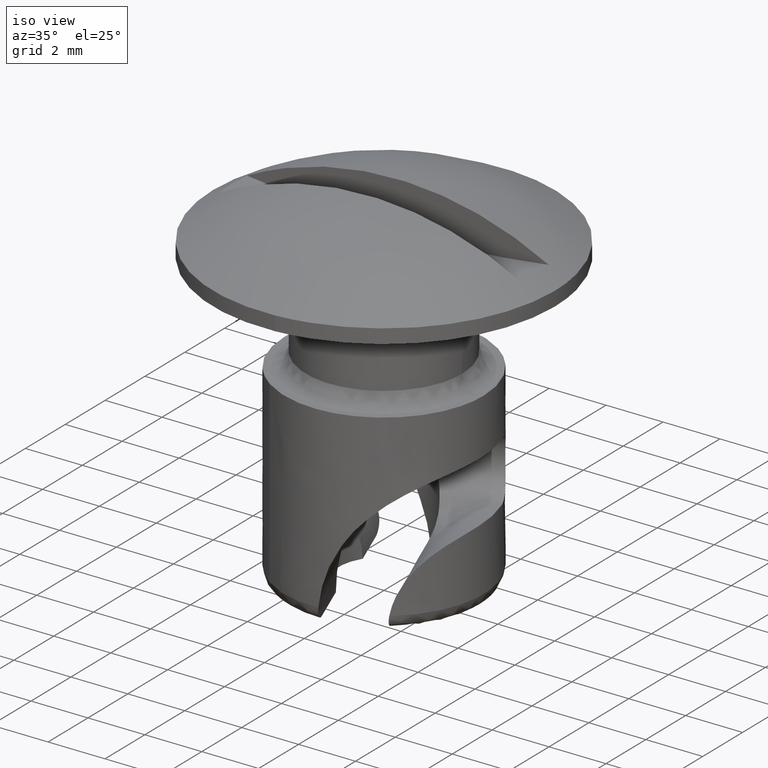
[diagram: clean part render]
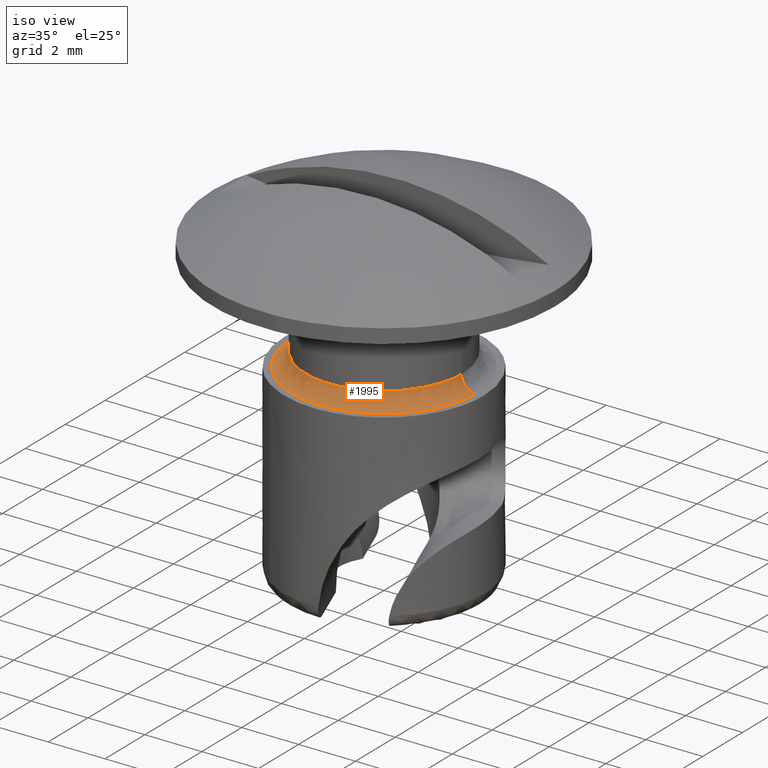
[diagram: same view with one face highlighted and labeled with its STEP entity id]
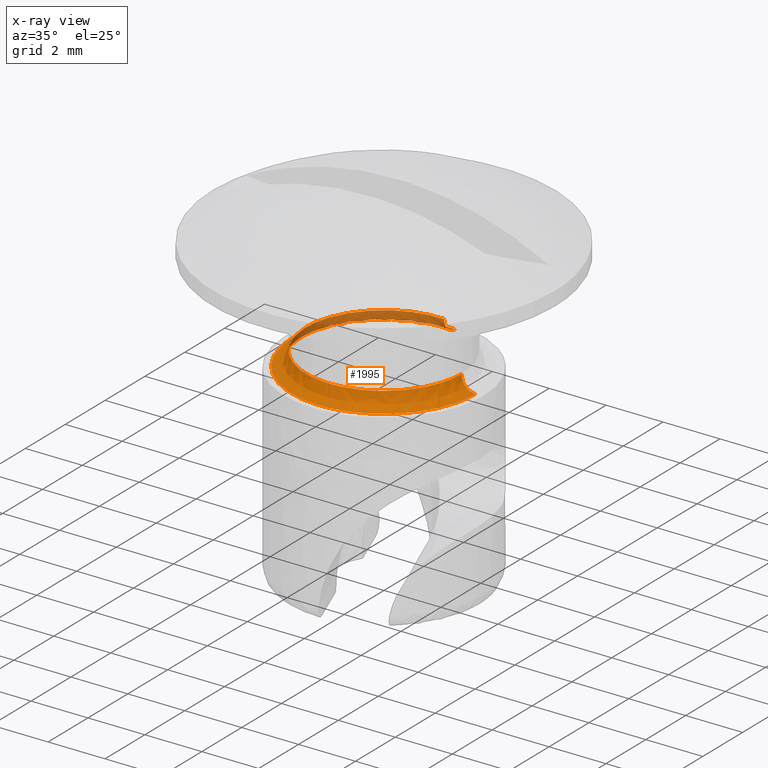
[diagram: x-ray of the same camera — body ghosted, the highlighted face saturated]
A machine part, iso view. The second image highlights one B-rep face of the part: STEP entity #1995.
The next image is the same camera in x-ray: the body ghosted, the highlighted face saturated — about 21% of this face is hidden behind the body in this view.
In plain terms, the highlighted face is a freeform B-spline surface patch.
Its self-contained STEP definition (entity closure, byte-faithful):
#513=CARTESIAN_POINT('',(-1.384188101120098,2.376241423070051,-2.999999999999996));
#514=VERTEX_POINT('',#513);
#515=CARTESIAN_POINT('',(-2.750000000000000,0.0,-3.0));
#516=VERTEX_POINT('',#515);
#517=CARTESIAN_POINT('',(-1.384188101120098,2.376241423070051,-2.999999999999996));
#518=CARTESIAN_POINT('',(-2.750000000000000,1.580640201560543,-3.0));
#519=CARTESIAN_POINT('',(-2.750000000000000,0.0,-3.0));
#527=(BOUNDED_CURVE()B_SPLINE_CURVE(2,(#517,#518,#519),.UNSPECIFIED.,.F.,.U.)B_SPLINE_CURVE_WITH_KNOTS((3,3),(0.335863074090461,0.500000000000000),.UNSPECIFIED.)CURVE()GEOMETRIC_REPRESENTATION_ITEM()RATIONAL_B_SPLINE_CURVE((0.867909366320431,0.807701629776839,1.0))REPRESENTATION_ITEM(''));
#528=EDGE_CURVE('',#514,#516,#527,.T.);
#530=CARTESIAN_POINT('',(1.517825455148952,-2.293186840991388,-3.000000000000460));
#531=VERTEX_POINT('',#530);
#532=CARTESIAN_POINT('',(-2.750000000000000,0.0,-3.0));
#533=CARTESIAN_POINT('',(-2.750000000000000,-2.750000000000000,-3.0));
#534=CARTESIAN_POINT('',(0.0,-2.750000000000000,-3.0));
#535=CARTESIAN_POINT('',(0.827655237305774,-2.749999999999999,-3.000000000000000));
#536=CARTESIAN_POINT('',(1.517825455148952,-2.293186840991389,-3.000000000000461));
#544=(BOUNDED_CURVE()B_SPLINE_CURVE(2,(#532,#533,#534,#535,#536),.UNSPECIFIED.,.F.,.U.)B_SPLINE_CURVE_WITH_KNOTS((3,2,3),(0.500000000000000,0.750000000000000,0.844612601257337),.UNSPECIFIED.)CURVE()GEOMETRIC_REPRESENTATION_ITEM()RATIONAL_B_SPLINE_CURVE((1.0,0.707106781186548,1.0,0.889154442709700,0.862207977523835))REPRESENTATION_ITEM(''));
#545=EDGE_CURVE('',#516,#531,#544,.T.);
#627=CARTESIAN_POINT('',(0.191766441840461,2.743305603060630,-3.000000000002729));
#628=VERTEX_POINT('',#627);
#629=CARTESIAN_POINT('',(0.191766441840461,2.743305603060631,-3.000000000002729));
#630=CARTESIAN_POINT('',(0.096000068663482,2.750000000000000,-3.0));
#631=CARTESIAN_POINT('',(0.0,2.750000000000000,-3.0));
#632=CARTESIAN_POINT('',(-0.742555210324266,2.750000000000000,-3.000000000000000));
#633=CARTESIAN_POINT('',(-1.384188101120098,2.376241423070051,-2.999999999999996));
#641=(BOUNDED_CURVE()B_SPLINE_CURVE(2,(#629,#630,#631,#632,#633),.UNSPECIFIED.,.F.,.U.)B_SPLINE_CURVE_WITH_KNOTS((3,2,3),(0.237833686534132,0.250000000000000,0.335863074090461),.UNSPECIFIED.)CURVE()GEOMETRIC_REPRESENTATION_ITEM()RATIONAL_B_SPLINE_CURVE((0.972879876384946,0.985746277151554,1.0,0.899405151409708,0.867909366320431))REPRESENTATION_ITEM(''));
#642=EDGE_CURVE('',#628,#514,#641,.T.);
#676=CARTESIAN_POINT('',(2.749782871560377,-0.034556609688484,-3.000000000002761));
#677=VERTEX_POINT('',#676);
#678=CARTESIAN_POINT('',(1.517825455148952,-2.293186840991389,-3.000000000000461));
#679=CARTESIAN_POINT('',(2.731493797826455,-1.489878243671177,-3.000000000001281));
#680=CARTESIAN_POINT('',(2.749782871560378,-0.034556609688484,-3.000000000002761));
#688=(BOUNDED_CURVE()B_SPLINE_CURVE(2,(#678,#679,#680),.UNSPECIFIED.,.F.,.U.)B_SPLINE_CURVE_WITH_KNOTS((3,3),(0.844612601257337,0.997784295920543),.UNSPECIFIED.)CURVE()GEOMETRIC_REPRESENTATION_ITEM()RATIONAL_B_SPLINE_CURVE((0.862207977523835,0.818583389648107,0.994854295641283))REPRESENTATION_ITEM(''));
#689=EDGE_CURVE('',#531,#677,#688,.T.);
#1892=CARTESIAN_POINT('',(0.191850689749285,2.744512984986955,-2.965231439823613));
#1893=CARTESIAN_POINT('',(0.113303983037541,2.750003664004549,-2.965231439823613));
#1894=CARTESIAN_POINT('',(0.034571818579025,2.750993093644442,-2.965231439823613));
#1895=CARTESIAN_POINT('',(-2.716421275065415,2.785564912223467,-2.965231439823613));
#1896=CARTESIAN_POINT('',(-2.750993093644442,0.034571818579026,-2.965231439823613));
#1897=CARTESIAN_POINT('',(-2.785564912223467,-2.716421275065415,-2.965231439823613));
#1898=CARTESIAN_POINT('',(-0.034571818579026,-2.750993093644442,-2.965231439823613));
#1899=CARTESIAN_POINT('',(2.716421275065415,-2.785564912223467,-2.965231439823613));
#1900=CARTESIAN_POINT('',(2.750993093644442,-0.034571818579026,-2.965231439823613));
#1901=CARTESIAN_POINT('',(0.189062832871941,2.704631400979344,-3.538768724619994));
#1902=CARTESIAN_POINT('',(0.111657518858786,2.710042292807845,-3.538768724619993));
#1903=CARTESIAN_POINT('',(0.034069442057399,2.711017344661399,-3.538768724619994));
#1904=CARTESIAN_POINT('',(-2.676947902604001,2.745086786718798,-3.538768724619994));
#1905=CARTESIAN_POINT('',(-2.711017344661399,0.034069442057399,-3.538768724619994));
#1906=CARTESIAN_POINT('',(-2.745086786718798,-2.676947902603998,-3.538768724619994));
#1907=CARTESIAN_POINT('',(-0.034069442057400,-2.711017344661399,-3.538768724619994));
#1908=CARTESIAN_POINT('',(2.676947902603998,-2.745086786718798,-3.538768724619994));
#1909=CARTESIAN_POINT('',(2.711017344661399,-0.034069442057400,-3.538768724619994));
#1910=CARTESIAN_POINT('',(0.229057420356976,3.276772501046897,-3.498789673531686));
#1911=CARTESIAN_POINT('',(0.135277689669325,3.283328019681841,-3.498789673531686));
#1912=CARTESIAN_POINT('',(0.041276534325259,3.284509335220684,-3.498789673531686));
#1913=CARTESIAN_POINT('',(-3.243232800895425,3.325785869545943,-3.498789673531686));
#1914=CARTESIAN_POINT('',(-3.284509335220684,0.041276534325259,-3.498789673531686));
#1915=CARTESIAN_POINT('',(-3.325785869545943,-3.243232800895425,-3.498789673531686));
#1916=CARTESIAN_POINT('',(-0.041276534325259,-3.284509335220684,-3.498789673531686));
#1917=CARTESIAN_POINT('',(3.243232800895425,-3.325785869545943,-3.498789673531686));
#1918=CARTESIAN_POINT('',(3.284509335220684,-0.041276534325259,-3.498789673531686));
#1926=(BOUNDED_SURFACE()B_SPLINE_SURFACE(2,2,((#1892,#1901,#1910),(#1893,#1902,#1911),(#1894,#1903,#1912),(#1895,#1904,#1913),(#1896,#1905,#1914),(#1897,#1906,#1915),(#1898,#1907,#1916),(#1899,#1908,#1917),(#1900,#1909,#1918)),.UNSPECIFIED.,.F.,.F.,.U.)B_SPLINE_SURFACE_WITH_KNOTS((3,2,2,2,3),(3,3),(0.0,0.217695110679059,5.660078067916368,11.102461025153680,16.544843982390990),(0.0,0.911187122626835),.UNSPECIFIED.)GEOMETRIC_REPRESENTATION_ITEM()RATIONAL_B_SPLINE_SURFACE(((0.889999304494564,0.584039710294107,0.889999407387332),(0.899812875568637,0.590479620053708,0.899812979595952),(0.910479799764563,0.597479521385828,0.910479905025080),(0.643806440546892,0.422481821192012,0.643806514977317),(0.910479799764563,0.597479521385828,0.910479905025080),(0.643806440546892,0.422481821192012,0.643806514977317),(0.910479799764563,0.597479521385828,0.910479905025080),(0.643806440546892,0.422481821192012,0.643806514977317),(0.910479799764563,0.597479521385828,0.910479905025080)))REPRESENTATION_ITEM('')SURFACE());
#1927=CARTESIAN_POINT('',(-3.250000000000000,0.0,-3.500000000000000));
#1928=VERTEX_POINT('',#1927);
#1929=CARTESIAN_POINT('',(0.226633068143623,3.242088440412878,-3.500000000000000));
#1930=VERTEX_POINT('',#1929);
#1931=CARTESIAN_POINT('',(-3.250000000000000,0.0,-3.500000000000000));
#1932=CARTESIAN_POINT('',(-3.250000000000000,3.250000000000000,-3.500000000000000));
#1933=CARTESIAN_POINT('',(0.0,3.250000000000000,-3.500000000000000));
#1934=CARTESIAN_POINT('',(0.113454627085493,3.250000000000000,-3.500000000000000));
#1935=CARTESIAN_POINT('',(0.226633068143623,3.242088440412877,-3.500000000000000));
#1943=(BOUNDED_CURVE()B_SPLINE_CURVE(2,(#1931,#1932,#1933,#1934,#1935),.UNSPECIFIED.,.F.,.U.)B_SPLINE_CURVE_WITH_KNOTS((3,2,3),(0.500000000000000,0.750000000000000,0.762166313516945),.UNSPECIFIED.)CURVE()GEOMETRIC_REPRESENTATION_ITEM()RATIONAL_B_SPLINE_CURVE((1.0,0.707106781186547,1.0,0.985746277091713,0.972879876276914))REPRESENTATION_ITEM(''));
#1944=EDGE_CURVE('',#1928,#1930,#1943,.T.);
#1945=ORIENTED_EDGE('',*,*,#1944,.F.);
#1946=CARTESIAN_POINT('',(3.249743393260485,-0.040839629675830,-3.500000000000000));
#1947=VERTEX_POINT('',#1946);
#1948=CARTESIAN_POINT('',(3.249743393260485,-0.040839629675830,-3.500000000000000));
#1949=CARTESIAN_POINT('',(3.209413772080300,-3.250000000000001,-3.500000000000000));
#1950=CARTESIAN_POINT('',(0.0,-3.250000000000000,-3.500000000000000));
#1951=CARTESIAN_POINT('',(-3.250000000000000,-3.250000000000000,-3.500000000000000));
#1952=CARTESIAN_POINT('',(-3.250000000000000,0.0,-3.500000000000000));
#1960=(BOUNDED_CURVE()B_SPLINE_CURVE(2,(#1948,#1949,#1950,#1951,#1952),.UNSPECIFIED.,.F.,.U.)B_SPLINE_CURVE_WITH_KNOTS((3,2,3),(0.002215704084763,0.250000000000000,0.500000000000000),.UNSPECIFIED.)CURVE()GEOMETRIC_REPRESENTATION_ITEM()RATIONAL_B_SPLINE_CURVE((0.994854295629072,0.709702639991845,1.0,0.707106781186547,1.0))REPRESENTATION_ITEM(''));
#1961=EDGE_CURVE('',#1947,#1928,#1960,.T.);
#1962=ORIENTED_EDGE('',*,*,#1961,.F.);
#1963=CARTESIAN_POINT('',(2.749782871560378,-0.034556609688484,-3.000000000002761));
#1964=CARTESIAN_POINT('',(2.749782871566013,-0.034556609679289,-3.499999999197610));
#1965=CARTESIAN_POINT('',(3.249743393260486,-0.040839629675830,-3.500000000000000));
#1973=(BOUNDED_CURVE()B_SPLINE_CURVE(2,(#1963,#1964,#1965),.UNSPECIFIED.,.F.,.U.)B_SPLINE_CURVE_WITH_KNOTS((3,3),(-1.725134643270492,-0.274865358363878),.UNSPECIFIED.)CURVE()GEOMETRIC_REPRESENTATION_ITEM()RATIONAL_B_SPLINE_CURVE((0.883342149649020,0.624617224423188,0.883342149065883))REPRESENTATION_ITEM(''));
#1974=EDGE_CURVE('',#677,#1947,#1973,.T.);
#1975=ORIENTED_EDGE('',*,*,#1974,.F.);
#1976=ORIENTED_EDGE('',*,*,#689,.F.);
#1977=ORIENTED_EDGE('',*,*,#545,.F.);
#1978=ORIENTED_EDGE('',*,*,#528,.F.);
#1979=ORIENTED_EDGE('',*,*,#642,.F.);
#1980=CARTESIAN_POINT('',(0.191766441840461,2.743305603060630,-3.000000000002729));
#1981=CARTESIAN_POINT('',(0.191766441832847,2.743305603066632,-3.500000000933846));
#1982=CARTESIAN_POINT('',(0.226633068143623,3.242088440412878,-3.500000000000000));
#1990=(BOUNDED_CURVE()B_SPLINE_CURVE(2,(#1980,#1981,#1982),.UNSPECIFIED.,.F.,.U.)B_SPLINE_CURVE_WITH_KNOTS((3,3),(-1.725134643270621,-0.274865354802878),.UNSPECIFIED.)CURVE()GEOMETRIC_REPRESENTATION_ITEM()RATIONAL_B_SPLINE_CURVE((0.863472075368799,0.610566959529211,0.863472076040704))REPRESENTATION_ITEM(''));
#1991=EDGE_CURVE('',#628,#1930,#1990,.T.);
#1992=ORIENTED_EDGE('',*,*,#1991,.T.);
#1993=EDGE_LOOP('',(#1945,#1962,#1975,#1976,#1977,#1978,#1979,#1992));
#1994=FACE_OUTER_BOUND('',#1993,.T.);
#1995=ADVANCED_FACE('',(#1994),#1926,.F.);